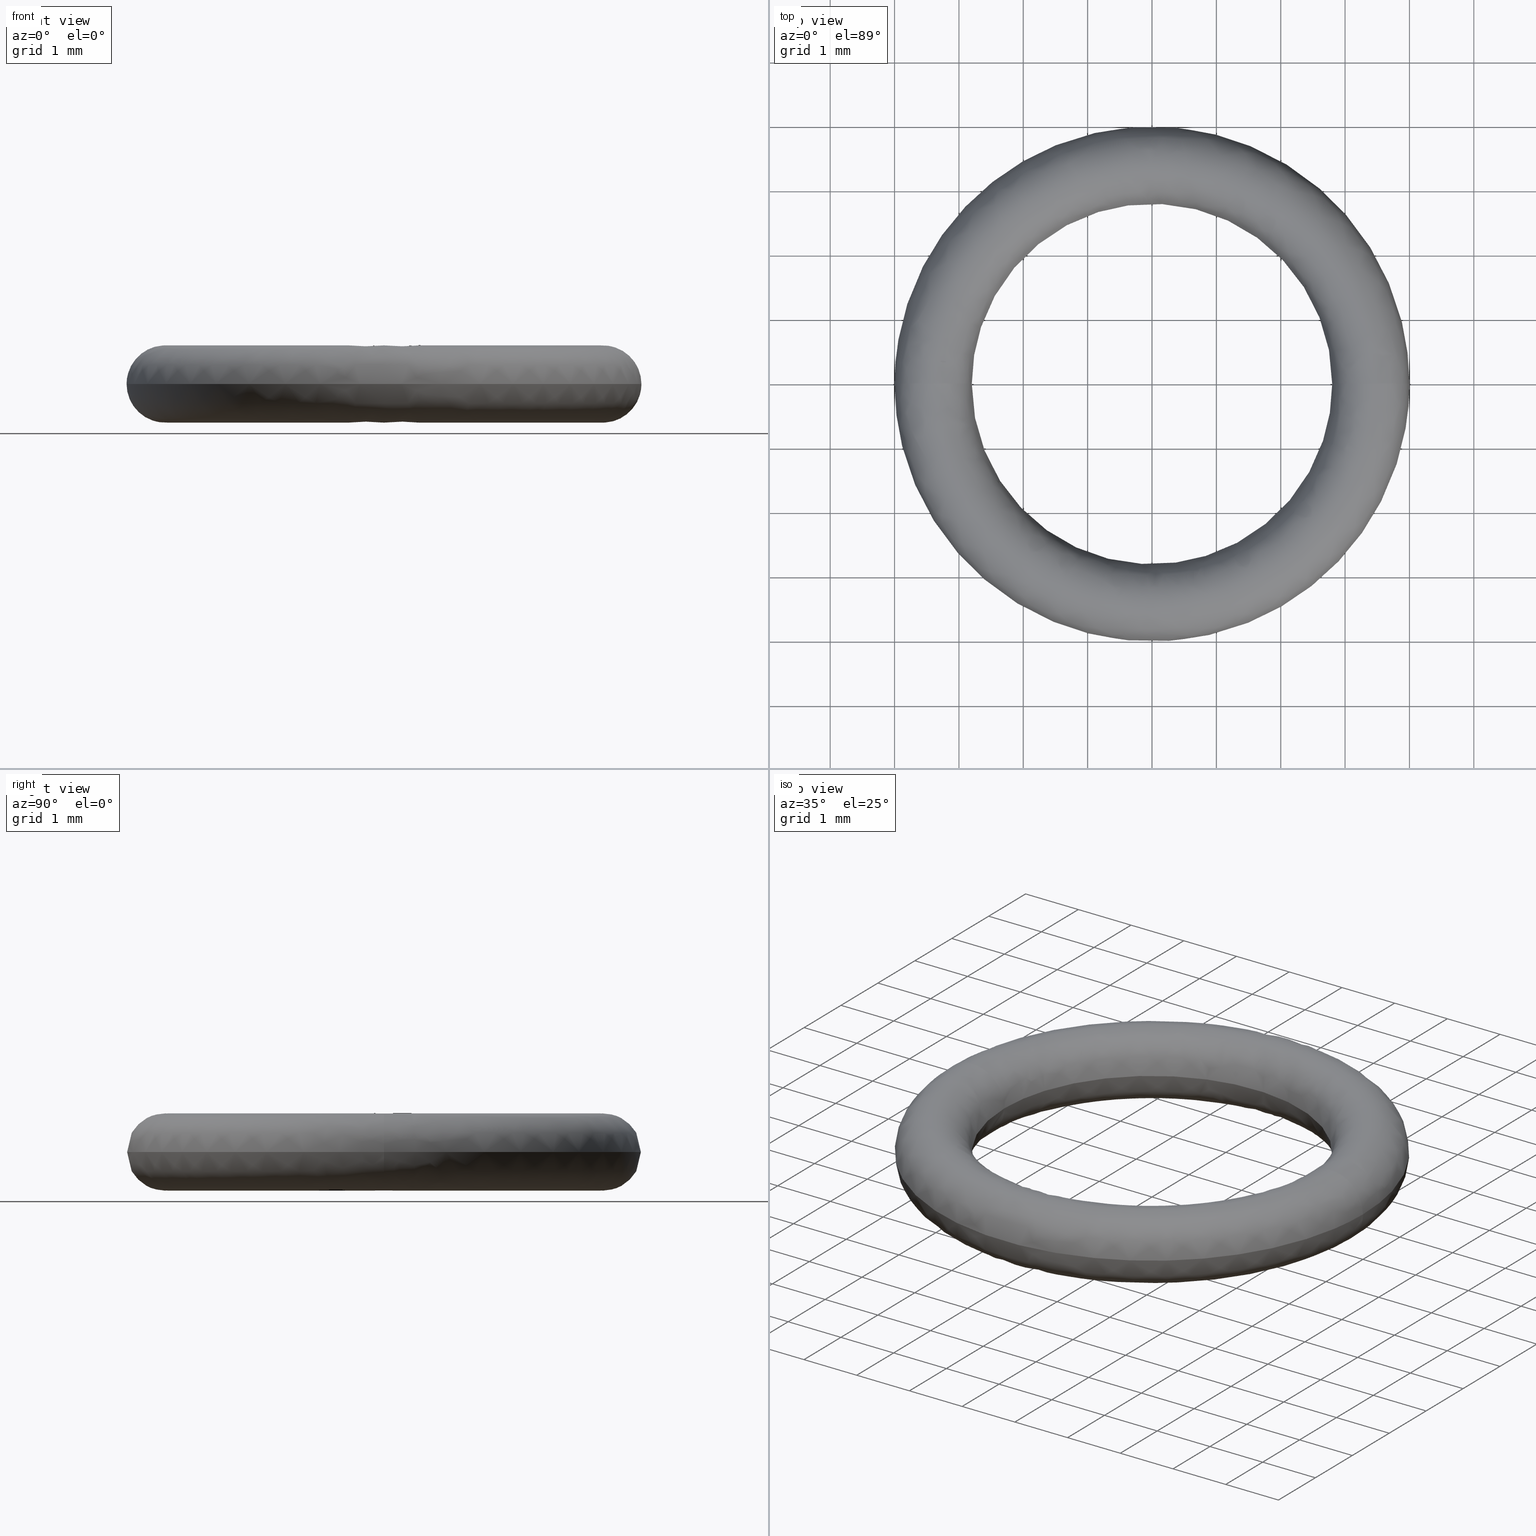
[diagram: canonical four-view strip — front | top / right | iso, engineering-drawing reading convention]
A machine part, canonical four-view strip (front | top / right | iso — engineering-drawing reading convention). The complete STEP part file that produces these views, byte-faithful:
ISO-10303-21;
HEADER;
/****************************************************************
 * Generated by software with PDE/Lib inside                    *
 * PDElib Version v5.1, created Sun 05/01/2005                  *
 * International Technegroup Inc. (www.iti-oh.com)              *
 ****************************************************************/
FILE_DESCRIPTION((''),'2;1');
FILE_NAME('','2008-05-09T15:37:03',(''),(''),'','CADfix','');
FILE_SCHEMA(('AUTOMOTIVE_DESIGN { 1 0 10303 214 1 1 1 1 }'));
ENDSEC;
DATA;
#5=CARTESIAN_POINT('',(-2.777875372500668,-0.396817956375201,16.314835930671720));
#6=CARTESIAN_POINT('',(-3.235406833895217,2.806074852110597,16.314835930671716));
#7=CARTESIAN_POINT('',(0.0,2.806074852110597,16.314835930671716));
#8=CARTESIAN_POINT('',(3.235406871185183,2.806074852110597,16.314835930671713));
#9=CARTESIAN_POINT('',(2.777875367973068,-0.396817988070098,16.314835930671720));
#10=CARTESIAN_POINT('',(-2.681230829685066,-0.383012337032250,16.995666644880025));
#11=CARTESIAN_POINT('',(-3.122844399532731,2.708449226471225,16.995666644880025));
#12=CARTESIAN_POINT('',(0.0,2.708449226471226,16.995666644880025));
#13=CARTESIAN_POINT('',(3.122844435525348,2.708449226471225,16.995666644880025));
#14=CARTESIAN_POINT('',(2.681230825314987,-0.383012367624456,16.995666644880028));
#15=CARTESIAN_POINT('',(-3.362099904382788,-0.480274106748508,16.999988156513684));
#16=CARTESIAN_POINT('',(-3.915856382385606,3.396230113620663,16.999988156513687));
#17=CARTESIAN_POINT('',(0.0,3.396230113620664,16.999988156513680));
#18=CARTESIAN_POINT('',(3.915856427518151,3.396230113620663,16.999988156513684));
#19=CARTESIAN_POINT('',(3.362099898902975,-0.480274145109267,16.999988156513684));
#20=CARTESIAN_POINT('',(-4.051174050545057,-0.578707966373012,17.004361746165149));
#21=CARTESIAN_POINT('',(-4.718424857423761,4.092299365656576,17.004361746165138));
#22=CARTESIAN_POINT('',(0.0,4.092299365656578,17.004361746165152));
#23=CARTESIAN_POINT('',(4.718424911806380,4.092299365656578,17.004361746165142));
#24=CARTESIAN_POINT('',(4.051174043942133,-0.578708012595943,17.004361746165149));
#25=CARTESIAN_POINT('',(-3.953848004724359,-0.564804994703739,16.315256616232155));
#26=CARTESIAN_POINT('',(-4.605068672736176,3.993985318764339,16.315256616232165));
#27=CARTESIAN_POINT('',(0.0,3.993985318764341,16.315256616232162));
#28=CARTESIAN_POINT('',(4.605068725812303,3.993985318764341,16.315256616232162));
#29=CARTESIAN_POINT('',(3.953847998280069,-0.564805039816204,16.315256616232165));
#37=(BOUNDED_SURFACE()B_SPLINE_SURFACE(2,2,((#5,#10,#15,#20,#25),(#6,#11,#16,#21,#26),(#7,#12,#17,#22,#27),(#8,#13,#18,#23,#28),(#9,#14,#19,#24,#29)),.UNSPECIFIED.,.F.,.F.,.U.)B_SPLINE_SURFACE_WITH_KNOTS((3,2,3),(3,2,3),(0.0,7.291548608835258,14.583097272542959),(0.0,1.091252790812270,2.191062567604252),.UNSPECIFIED.)GEOMETRIC_REPRESENTATION_ITEM()RATIONAL_B_SPLINE_SURFACE(((0.981153888787269,0.648897167007275,0.993091000097863,0.646198194020578,0.986406220279565),(0.645088854033311,0.426636773939286,0.652937263486529,0.424862253743267,0.648542155846706),(0.987979841414918,0.653411587602073,1.0,0.650693837681440,0.993268713725490),(0.645088851452890,0.426636772232695,0.652937260874713,0.424862252043775,0.648542153252471),(0.981153893845374,0.648897170352509,0.993091005217507,0.646198197351899,0.986406225364747)))REPRESENTATION_ITEM('')SURFACE());
#38=CARTESIAN_POINT('',(4.0,0.0,16.399999999999999));
#39=VERTEX_POINT('',#38);
#40=CARTESIAN_POINT('',(-4.0,0.0,16.399999999999999));
#41=VERTEX_POINT('',#40);
#42=CARTESIAN_POINT('',(4.0,0.0,16.399999999999999));
#43=CARTESIAN_POINT('',(3.999961440489741,0.008181102791766,16.399999999999999));
#44=CARTESIAN_POINT('',(3.999967574564873,0.020450532218382,16.399999999999991));
#45=CARTESIAN_POINT('',(3.999739604024851,0.049081402965024,16.400000000000020));
#46=CARTESIAN_POINT('',(3.999374413978037,0.073620407451854,16.399999999999970));
#47=CARTESIAN_POINT('',(3.998777420192495,0.098156892664124,16.400000000000020));
#48=CARTESIAN_POINT('',(3.998383783816923,0.114514654640236,16.400000000000009));
#49=CARTESIAN_POINT('',(3.994110332273887,0.253532167455842,16.399999999999970));
#50=CARTESIAN_POINT('',(3.973154795636167,0.510680531255496,16.400000000000070));
#51=CARTESIAN_POINT('',(3.894083925516181,0.958293082501101,16.399999999999920));
#52=CARTESIAN_POINT('',(3.759352811009150,1.397593003374869,16.400000000000190));
#53=CARTESIAN_POINT('',(3.570884939821942,1.815791225785016,16.399999999999750));
#54=CARTESIAN_POINT('',(3.372014347450854,2.164353582960367,16.400000000000301));
#55=CARTESIAN_POINT('',(3.095997418079214,2.551219960457702,16.399999999999871));
#56=CARTESIAN_POINT('',(2.776631557714267,2.892907800792470,16.400000000000059));
#57=CARTESIAN_POINT('',(2.444533567672558,3.172324968443587,16.399999999999981));
#58=CARTESIAN_POINT('',(2.149953186303385,3.379793569105311,16.400000000000020));
#59=CARTESIAN_POINT('',(1.780648328435654,3.592014683009853,16.400000000000009));
#60=CARTESIAN_POINT('',(1.373669597998486,3.766468058451909,16.400000000000009));
#61=CARTESIAN_POINT('',(0.871087526299696,3.915570685735706,16.400000000000009));
#62=CARTESIAN_POINT('',(0.368702580764256,3.996407127036347,16.399999999999999));
#63=CARTESIAN_POINT('',(-0.139402530317862,4.005748185336730,16.400000000000009));
#64=CARTESIAN_POINT('',(-0.547220152750281,3.968105416517205,16.400000000000020));
#65=CARTESIAN_POINT('',(-0.925591056888228,3.897658889155479,16.399999999999970));
#66=CARTESIAN_POINT('',(-1.303600577278545,3.789297323208371,16.400000000000091));
#67=CARTESIAN_POINT('',(-1.645478292933573,3.651356998284719,16.399999999999959));
#68=CARTESIAN_POINT('',(-1.981302890566524,3.481023356246583,16.399999999999579));
#69=CARTESIAN_POINT('',(-2.342669214742069,3.255295677619120,16.400000000001299));
#70=CARTESIAN_POINT('',(-2.743090871598162,2.928730099104168,16.399999999999611));
#71=CARTESIAN_POINT('',(-3.139336709116809,2.502186195997212,16.400000000000190));
#72=CARTESIAN_POINT('',(-3.441136026738777,2.062287892690360,16.399999999999991));
#73=CARTESIAN_POINT('',(-3.689426017246314,1.572762870391445,16.399999999999871));
#74=CARTESIAN_POINT('',(-3.852479648786980,1.117053041660057,16.400000000000428));
#75=CARTESIAN_POINT('',(-3.971213632769302,0.572678780686917,16.399999999998901));
#76=CARTESIAN_POINT('',(-4.000015899636702,0.212711229629193,16.400000000001960));
#77=CARTESIAN_POINT('',(-4.0,0.0,16.399999999999999));
#78=B_SPLINE_CURVE_WITH_KNOTS('',3,(#42,#43,#44,#45,#46,#47,#48,#49,#50,#51,#52,#53,#54,#55,#56,#57,#58,#59,#60,#61,#62,#63,#64,#65,#66,#67,#68,#69,#70,#71,#72,#73,#74,#75,#76,#77),.UNSPECIFIED.,.F.,.U.,(4,1,1,1,1,1,1,1,1,1,1,1,1,1,1,1,1,1,1,1,1,1,1,1,1,1,1,1,1,1,1,1,1,4),(-0.000000209137596,0.024543491509574,0.036807681926286,0.085895327478180,0.098167208588050,0.110439089697936,0.134982919323070,0.515415245818492,0.883568931240912,1.497166940416763,1.889864152655729,2.258022912732876,2.699809435516153,3.313404284423827,3.657016211777661,4.000630372694650,4.393330845419417,4.933294055388171,5.325992935525208,5.964132481822455,6.454995797628889,6.847696719384165,7.191309076864951,7.608552269379263,8.025798469231166,8.295778967478007,8.737567311746116,9.302073808955822,9.842037269092650,10.480175369783471,10.897420264296221,11.486469650953531,11.928258623753980,12.566390195790500),.UNSPECIFIED.);
#79=EDGE_CURVE('',#39,#41,#78,.T.);
#80=ORIENTED_EDGE('',*,*,#79,.T.);
#81=CARTESIAN_POINT('',(-2.800000000000000,0.0,16.399999999999999));
#82=VERTEX_POINT('',#81);
#83=CARTESIAN_POINT('',(-2.800000000000000,0.0,16.399999999999999));
#84=CARTESIAN_POINT('',(-2.799994353726029,0.0,16.441723926962460));
#85=CARTESIAN_POINT('',(-2.808737144108266,0.0,16.525170939752609));
#86=CARTESIAN_POINT('',(-2.843682864093510,0.0,16.633173753535239));
#87=CARTESIAN_POINT('',(-2.893571713351621,0.0,16.726502531755418));
#88=CARTESIAN_POINT('',(-2.947271016792977,0.0,16.797079483757251));
#89=CARTESIAN_POINT('',(-3.014150843748988,0.0,16.862338376996099));
#90=CARTESIAN_POINT('',(-3.092013886586734,0.0,16.918620808358138));
#91=CARTESIAN_POINT('',(-3.183103088158511,0.0,16.962386197675539));
#92=CARTESIAN_POINT('',(-3.284740577166984,0.0,16.991861379269441));
#93=CARTESIAN_POINT('',(-3.385238126015104,0.0,17.003006296942150));
#94=CARTESIAN_POINT('',(-3.481043080016893,0.0,16.996525422313500));
#95=CARTESIAN_POINT('',(-3.577271079371918,0.0,16.976158591405412));
#96=CARTESIAN_POINT('',(-3.666849490362431,0.0,16.940972442704151));
#97=CARTESIAN_POINT('',(-3.748560128106654,0.0,16.890616233581358));
#98=CARTESIAN_POINT('',(-3.816990961112133,0.0,16.834458255815338));
#99=CARTESIAN_POINT('',(-3.883168853671293,0.0,16.761449719874641));
#100=CARTESIAN_POINT('',(-3.933622882016130,0.0,16.679562813054289));
#101=CARTESIAN_POINT('',(-3.969896826736434,0.0,16.593483016764178));
#102=CARTESIAN_POINT('',(-3.993654314216274,0.0,16.505534769370961));
#103=CARTESIAN_POINT('',(-4.000004211094138,0.0,16.436814191478351));
#104=CARTESIAN_POINT('',(-4.0,0.0,16.399999999999999));
#105=B_SPLINE_CURVE_WITH_KNOTS('',3,(#83,#84,#85,#86,#87,#88,#89,#90,#91,#92,#93,#94,#95,#96,#97,#98,#99,#100,#101,#102,#103,#104),.UNSPECIFIED.,.F.,.U.,(4,1,1,1,1,1,1,1,1,1,1,1,1,1,1,1,1,1,1,4),(0.000000018782312,0.125171717481873,0.250347001741718,0.338705202091769,0.441788962435015,0.515421062808772,0.618507664575425,0.728954044913051,0.817314844633319,0.935123349713143,1.030841062840501,1.104472979424578,1.229646399557252,1.318004350430563,1.391635806681963,1.494720717067872,1.612531298924086,1.678799555810332,1.774525153378292,1.884967419458762),.UNSPECIFIED.);
#106=EDGE_CURVE('',#82,#41,#105,.T.);
#107=ORIENTED_EDGE('',*,*,#106,.F.);
#108=CARTESIAN_POINT('',(2.800000000000000,0.0,16.399999999999999));
#109=VERTEX_POINT('',#108);
#110=CARTESIAN_POINT('',(2.800000000000000,0.0,16.399999999999999));
#111=CARTESIAN_POINT('',(2.800004812009069,0.125989308582607,16.400000000000041));
#112=CARTESIAN_POINT('',(2.782579121566970,0.383696299128810,16.399999999999931));
#113=CARTESIAN_POINT('',(2.705241802195382,0.754633241336199,16.400000000000080));
#114=CARTESIAN_POINT('',(2.576820895603008,1.117052501365740,16.399999999999899));
#115=CARTESIAN_POINT('',(2.416488145136829,1.428404963207836,16.400000000000020));
#116=CARTESIAN_POINT('',(2.245305949130950,1.679552040897550,16.400000000000009));
#117=CARTESIAN_POINT('',(2.048234778051256,1.918197845318276,16.399999999999832));
#118=CARTESIAN_POINT('',(1.808430740334151,2.149331834045954,16.400000000000311));
#119=CARTESIAN_POINT('',(1.483582043366364,2.385653506310190,16.399999999999832));
#120=CARTESIAN_POINT('',(1.153786354958993,2.560635553671300,16.400000000000290));
#121=CARTESIAN_POINT('',(0.825404503079591,2.681544423207676,16.399999999999949));
#122=CARTESIAN_POINT('',(0.496947567025119,2.762751778803920,16.400000000000059));
#123=CARTESIAN_POINT('',(0.166344823841260,2.802498892100321,16.399999999999849));
#124=CARTESIAN_POINT('',(-0.189253707292652,2.800313946405548,16.399999999999810));
#125=CARTESIAN_POINT('',(-0.485307763489216,2.762877886378525,16.400000000000109));
#126=CARTESIAN_POINT('',(-0.792228330165327,2.690981760751203,16.399999999999959));
#127=CARTESIAN_POINT('',(-1.068693632494266,2.594924385079142,16.400000000000031));
#128=CARTESIAN_POINT('',(-1.347403063821782,2.459948629402672,16.399999999999999));
#129=CARTESIAN_POINT('',(-1.601240313112609,2.303539145714728,16.399999999999999));
#130=CARTESIAN_POINT('',(-1.859636409334965,2.103161144502490,16.399999999999999));
#131=CARTESIAN_POINT('',(-2.139696958486721,1.823113000589331,16.400000000000009));
#132=CARTESIAN_POINT('',(-2.380793398265504,1.493832865075246,16.399999999999999));
#133=CARTESIAN_POINT('',(-2.561561659436937,1.147988773044523,16.399999999999999));
#134=CARTESIAN_POINT('',(-2.696590786933832,0.788134522616054,16.400000000000372));
#135=CARTESIAN_POINT('',(-2.781038356102332,0.406606267933009,16.399999999998780));
#136=CARTESIAN_POINT('',(-2.800002292685097,0.125989228224001,16.400000000001079));
#137=CARTESIAN_POINT('',(-2.800000000000000,0.0,16.399999999999999));
#138=B_SPLINE_CURVE_WITH_KNOTS('',3,(#110,#111,#112,#113,#114,#115,#116,#117,#118,#119,#120,#121,#122,#123,#124,#125,#126,#127,#128,#129,#130,#131,#132,#133,#134,#135,#136,#137),.UNSPECIFIED.,.F.,.U.,(4,1,1,1,1,1,1,1,1,1,1,1,1,1,1,1,1,1,1,1,1,1,1,1,1,4),(4.500448E-009,0.377968096740929,0.773124412660360,1.133917160117234,1.529074027341316,1.821143805324539,2.044492759038594,2.456828710794857,2.817622875045096,3.247136556739816,3.573568763294388,3.865641197372780,4.260797836688766,4.570040062784586,4.930830581168669,5.154179668613714,5.514974132374521,5.807046629103290,6.081936028197761,6.408367821239052,6.786341860093609,7.267400934269064,7.628192636042226,7.954625146812234,8.418504063668173,8.796473229144109),.UNSPECIFIED.);
#139=EDGE_CURVE('',#109,#82,#138,.T.);
#140=ORIENTED_EDGE('',*,*,#139,.F.);
#141=CARTESIAN_POINT('',(4.0,0.0,16.399999999999999));
#142=CARTESIAN_POINT('',(4.000004803163661,0.0,16.441723644866549));
#143=CARTESIAN_POINT('',(3.990239329814242,0.0,16.534989613560359));
#144=CARTESIAN_POINT('',(3.944363270327732,0.0,16.665764326697708));
#145=CARTESIAN_POINT('',(3.875670365232792,0.0,16.771322325707530));
#146=CARTESIAN_POINT('',(3.804393216740163,0.0,16.846180655190679));
#147=CARTESIAN_POINT('',(3.728728786807723,0.0,16.905233317770509));
#148=CARTESIAN_POINT('',(3.650732231305449,0.0,16.947539584632491));
#149=CARTESIAN_POINT('',(3.565286025793939,0.0,16.978703587531388));
#150=CARTESIAN_POINT('',(3.473874241926062,0.0,16.998646154968860));
#151=CARTESIAN_POINT('',(3.380224176946903,0.0,17.002094985454029));
#152=CARTESIAN_POINT('',(3.287451844465935,0.0,16.991227165096070));
#153=CARTESIAN_POINT('',(3.201602170567794,0.0,16.969165930402600));
#154=CARTESIAN_POINT('',(3.104759116840002,0.0,16.926240153863372));
#155=CARTESIAN_POINT('',(3.023414126248645,0.0,16.870432075372200));
#156=CARTESIAN_POINT('',(2.955740701422391,0.0,16.805995601417830));
#157=CARTESIAN_POINT('',(2.903455714101586,0.0,16.740667610010050));
#158=CARTESIAN_POINT('',(2.850159165676228,0.0,16.649241282857421));
#159=CARTESIAN_POINT('',(2.810071487184983,0.0,16.534988222503010));
#160=CARTESIAN_POINT('',(2.799993376067489,0.0,16.444178435975740));
#161=CARTESIAN_POINT('',(2.800000000000000,0.0,16.399999999999999));
#162=B_SPLINE_CURVE_WITH_KNOTS('',3,(#141,#142,#143,#144,#145,#146,#147,#148,#149,#150,#151,#152,#153,#154,#155,#156,#157,#158,#159,#160,#161),.UNSPECIFIED.,.F.,.U.,(4,1,1,1,1,1,1,1,1,1,1,1,1,1,1,1,1,1,4),(0.000000018786240,0.125171717485643,0.279799921469428,0.412335833871252,0.500695230315393,0.589054589586465,0.699500247505869,0.765769115745533,0.861494480443776,0.979295057282230,1.045562757972785,1.141287110436962,1.244370130277400,1.362182668020234,1.435815178796237,1.524173478825338,1.612531298924706,1.752432195032293,1.884967419458812),.UNSPECIFIED.);
#163=EDGE_CURVE('',#39,#109,#162,.T.);
#164=ORIENTED_EDGE('',*,*,#163,.F.);
#165=EDGE_LOOP('',(#80,#107,#140,#164));
#166=FACE_OUTER_BOUND('',#165,.T.);
#167=ADVANCED_FACE('',(#166),#37,.T.);
#168=CARTESIAN_POINT('',(-3.953788438532989,-0.564796485706337,16.485164069328288));
#169=CARTESIAN_POINT('',(-4.604999295663133,3.993925147889400,16.485164069328295));
#170=CARTESIAN_POINT('',(0.0,3.993925147889400,16.485164069328277));
#171=CARTESIAN_POINT('',(4.604999348738456,3.993925147889401,16.485164069328288));
#172=CARTESIAN_POINT('',(3.953788432088797,-0.564796530818122,16.485164069328281));
#173=CARTESIAN_POINT('',(-4.050432981348592,-0.578602105049288,15.804333355119979));
#174=CARTESIAN_POINT('',(-4.717561730025619,4.091550773528772,15.804333355119979));
#175=CARTESIAN_POINT('',(0.0,4.091550773528773,15.804333355119985));
#176=CARTESIAN_POINT('',(4.717561784398291,4.091550773528772,15.804333355119979));
#177=CARTESIAN_POINT('',(4.050432974746877,-0.578602151263764,15.804333355119983));
#178=CARTESIAN_POINT('',(-3.369563906650869,-0.481340335333030,15.800011843486320));
#179=CARTESIAN_POINT('',(-3.924549747172747,3.403769886379333,15.800011843486313));
#180=CARTESIAN_POINT('',(0.0,3.403769886379334,15.800011843486320));
#181=CARTESIAN_POINT('',(3.924549792405488,3.403769886379334,15.800011843486324));
#182=CARTESIAN_POINT('',(3.369563901158891,-0.481340373778952,15.800011843486324));
#183=CARTESIAN_POINT('',(-2.680489760488602,-0.382906475708526,15.795638253834872));
#184=CARTESIAN_POINT('',(-3.121981272134589,2.707700634343421,15.795638253834863));
#185=CARTESIAN_POINT('',(0.0,2.707700634343421,15.795638253834861));
#186=CARTESIAN_POINT('',(3.121981308117259,2.707700634343421,15.795638253834865));
#187=CARTESIAN_POINT('',(2.680489756119730,-0.382906506292276,15.795638253834866));
#188=CARTESIAN_POINT('',(-2.777815806309296,-0.396809447377799,16.484743383767832));
#189=CARTESIAN_POINT('',(-3.235337456822173,2.806014681235657,16.484743383767849));
#190=CARTESIAN_POINT('',(0.0,2.806014681235657,16.484743383767846));
#191=CARTESIAN_POINT('',(3.235337494111338,2.806014681235657,16.484743383767842));
#192=CARTESIAN_POINT('',(2.777815801781796,-0.396809479072016,16.484743383767842));
#200=(BOUNDED_SURFACE()B_SPLINE_SURFACE(2,2,((#168,#173,#178,#183,#188),(#169,#174,#179,#184,#189),(#170,#175,#180,#185,#190),(#171,#176,#181,#186,#191),(#172,#177,#182,#187,#192)),.UNSPECIFIED.,.F.,.F.,.U.)B_SPLINE_SURFACE_WITH_KNOTS((3,2,3),(3,2,3),(0.0,7.291438758942369,14.582877572756360),(0.0,1.091252790812271,2.191062567604255),.UNSPECIFIED.)GEOMETRIC_REPRESENTATION_ITEM()RATIONAL_B_SPLINE_SURFACE(((0.981153888787269,0.648897167007275,0.993091000097863,0.646198194020578,0.986406220279565),(0.645088854033311,0.426636773939286,0.652937263486529,0.424862253743267,0.648542155846706),(0.987979841414918,0.653411587602073,1.0,0.650693837681440,0.993268713725490),(0.645088851452890,0.426636772232695,0.652937260874713,0.424862252043775,0.648542153252471),(0.981153893845374,0.648897170352509,0.993091005217507,0.646198197351899,0.986406225364747)))REPRESENTATION_ITEM('')SURFACE());
#201=ORIENTED_EDGE('',*,*,#139,.T.);
#202=CARTESIAN_POINT('',(-4.0,0.0,16.399999999999999));
#203=CARTESIAN_POINT('',(-4.000002249409790,0.0,16.363186614711640));
#204=CARTESIAN_POINT('',(-3.992302979636138,0.0,16.279736989762259));
#205=CARTESIAN_POINT('',(-3.955715417059697,0.0,16.161725387586330));
#206=CARTESIAN_POINT('',(-3.896143020738874,0.0,16.056580730816808));
#207=CARTESIAN_POINT('',(-3.816844495838745,0.0,15.962326755071320));
#208=CARTESIAN_POINT('',(-3.721321260831053,0.0,15.887777025697259));
#209=CARTESIAN_POINT('',(-3.616896279848947,0.0,15.837614282601990));
#210=CARTESIAN_POINT('',(-3.529441510034644,0.0,15.812255073491640));
#211=CARTESIAN_POINT('',(-3.446742728575046,0.0,15.799989068207561));
#212=CARTESIAN_POINT('',(-3.350771415261744,0.0,15.798805904870930));
#213=CARTESIAN_POINT('',(-3.229068931364115,0.0,15.819141406775950));
#214=CARTESIAN_POINT('',(-3.110481246967989,0.0,15.869120447026869));
#215=CARTESIAN_POINT('',(-3.015824800835956,0.0,15.935799834070410));
#216=CARTESIAN_POINT('',(-2.945367616918193,0.0,16.004548974694352));
#217=CARTESIAN_POINT('',(-2.882260892184698,0.0,16.089628023437260));
#218=CARTESIAN_POINT('',(-2.835235628034671,0.0,16.187499185047962));
#219=CARTESIAN_POINT('',(-2.806346212667720,0.0,16.294465411695811));
#220=CARTESIAN_POINT('',(-2.799995779917154,0.0,16.363185821076080));
#221=CARTESIAN_POINT('',(-2.800000000000000,0.0,16.399999999999999));
#222=B_SPLINE_CURVE_WITH_KNOTS('',3,(#202,#203,#204,#205,#206,#207,#208,#209,#210,#211,#212,#213,#214,#215,#216,#217,#218,#219,#220,#221),.UNSPECIFIED.,.F.,.U.,(4,1,1,1,1,1,1,1,1,1,1,1,1,1,1,1,1,4),(0.000000018780131,0.110441465082837,0.250347001739653,0.368157757168497,0.471242095958040,0.618507664574304,0.728954044912137,0.817314844632539,0.890942495057172,0.979295057280498,1.104472979424393,1.259099157792597,1.362182668019704,1.450542089480547,1.553626133913531,1.678799555810924,1.774525153378640,1.884967419458822),.UNSPECIFIED.);
#223=EDGE_CURVE('',#41,#82,#222,.T.);
#224=ORIENTED_EDGE('',*,*,#223,.F.);
#225=ORIENTED_EDGE('',*,*,#79,.F.);
#226=CARTESIAN_POINT('',(2.800000000000000,0.0,16.399999999999999));
#227=CARTESIAN_POINT('',(2.799992309614939,0.0,16.353368629078108));
#228=CARTESIAN_POINT('',(2.811495666202324,0.0,16.255195494228289));
#229=CARTESIAN_POINT('',(2.855313927737275,0.0,16.139476737843140));
#230=CARTESIAN_POINT('',(2.915955300363661,0.0,16.041085802324002));
#231=CARTESIAN_POINT('',(2.986827392033808,0.0,15.958911383233451));
#232=CARTESIAN_POINT('',(3.083125392997633,0.0,15.885645301462869));
#233=CARTESIAN_POINT('',(3.183103430334856,0.0,15.837614405878011));
#234=CARTESIAN_POINT('',(3.280014249449847,0.0,15.809511440221369));
#235=CARTESIAN_POINT('',(3.377809182116460,0.0,15.797448197503380));
#236=CARTESIAN_POINT('',(3.473765350254842,0.0,15.802165426145169));
#237=CARTESIAN_POINT('',(3.574973163509643,0.0,15.822938899742150));
#238=CARTESIAN_POINT('',(3.666849238753304,0.0,15.859027871747189));
#239=CARTESIAN_POINT('',(3.752751109825342,0.0,15.911965303479271));
#240=CARTESIAN_POINT('',(3.828076315978014,0.0,15.975343493187710));
#241=CARTESIAN_POINT('',(3.905891253905931,0.0,16.067803342769331));
#242=CARTESIAN_POINT('',(3.962204334531045,0.0,16.177987077688229));
#243=CARTESIAN_POINT('',(3.993652453106882,0.0,16.294466183736489));
#244=CARTESIAN_POINT('',(4.000004119203632,0.0,16.363185840098819));
#245=CARTESIAN_POINT('',(4.0,0.0,16.399999999999999));
#246=B_SPLINE_CURVE_WITH_KNOTS('',3,(#226,#227,#228,#229,#230,#231,#232,#233,#234,#235,#236,#237,#238,#239,#240,#241,#242,#243,#244,#245),.UNSPECIFIED.,.F.,.U.,(4,1,1,1,1,1,1,1,1,1,1,1,1,1,1,1,1,4),(0.000000018786855,0.139894757163807,0.294523319293112,0.368157757173257,0.485968427485647,0.618507664578307,0.728954044915797,0.817314844635872,0.920400074145881,1.023474659098492,1.104472979426352,1.229646399558693,1.318004350431840,1.406362498345935,1.524173478825866,1.678799555811153,1.774525153378642,1.884967419458770),.UNSPECIFIED.);
#247=EDGE_CURVE('',#109,#39,#246,.T.);
#248=ORIENTED_EDGE('',*,*,#247,.F.);
#249=EDGE_LOOP('',(#201,#224,#225,#248));
#250=FACE_OUTER_BOUND('',#249,.T.);
#251=ADVANCED_FACE('',(#250),#200,.T.);
#252=CARTESIAN_POINT('',(2.777875372500668,0.396817956375202,16.314835930671720));
#253=CARTESIAN_POINT('',(3.235406833895217,-2.806074852110597,16.314835930671716));
#254=CARTESIAN_POINT('',(3.436337E-016,-2.806074852110597,16.314835930671716));
#255=CARTESIAN_POINT('',(-3.235406871185182,-2.806074852110597,16.314835930671713));
#256=CARTESIAN_POINT('',(-2.777875367973068,0.396817988070097,16.314835930671720));
#257=CARTESIAN_POINT('',(2.681230829685066,0.383012337032251,16.995666644880025));
#258=CARTESIAN_POINT('',(3.122844399532731,-2.708449226471225,16.995666644880025));
#259=CARTESIAN_POINT('',(3.316784E-016,-2.708449226471226,16.995666644880025));
#260=CARTESIAN_POINT('',(-3.122844435525348,-2.708449226471225,16.995666644880025));
#261=CARTESIAN_POINT('',(-2.681230825314987,0.383012367624455,16.995666644880028));
#262=CARTESIAN_POINT('',(3.362099904382788,0.480274106748508,16.999988156513684));
#263=CARTESIAN_POINT('',(3.915856382385606,-3.396230113620663,16.999988156513687));
#264=CARTESIAN_POINT('',(4.159045E-016,-3.396230113620664,16.999988156513680));
#265=CARTESIAN_POINT('',(-3.915856427518151,-3.396230113620665,16.999988156513684));
#266=CARTESIAN_POINT('',(-3.362099898902975,0.480274145109267,16.999988156513684));
#267=CARTESIAN_POINT('',(4.051174050545057,0.578707966373013,17.004361746165149));
#268=CARTESIAN_POINT('',(4.718424857423761,-4.092299365656576,17.004361746165138));
#269=CARTESIAN_POINT('',(5.011456E-016,-4.092299365656578,17.004361746165152));
#270=CARTESIAN_POINT('',(-4.718424911806380,-4.092299365656578,17.004361746165142));
#271=CARTESIAN_POINT('',(-4.051174043942133,0.578708012595943,17.004361746165149));
#272=CARTESIAN_POINT('',(3.953848004724359,0.564804994703739,16.315256616232155));
#273=CARTESIAN_POINT('',(4.605068672736176,-3.993985318764339,16.315256616232165));
#274=CARTESIAN_POINT('',(4.891060E-016,-3.993985318764341,16.315256616232162));
#275=CARTESIAN_POINT('',(-4.605068725812299,-3.993985318764341,16.315256616232162));
#276=CARTESIAN_POINT('',(-3.953847998280069,0.564805039816203,16.315256616232165));
#284=(BOUNDED_SURFACE()B_SPLINE_SURFACE(2,2,((#252,#257,#262,#267,#272),(#253,#258,#263,#268,#273),(#254,#259,#264,#269,#274),(#255,#260,#265,#270,#275),(#256,#261,#266,#271,#276)),.UNSPECIFIED.,.F.,.F.,.U.)B_SPLINE_SURFACE_WITH_KNOTS((3,2,3),(3,2,3),(0.0,7.291548608835258,14.583097272542959),(0.0,1.091252790812270,2.191062567604251),.UNSPECIFIED.)GEOMETRIC_REPRESENTATION_ITEM()RATIONAL_B_SPLINE_SURFACE(((0.981153888787269,0.648897167007275,0.993091000097863,0.646198194020578,0.986406220279565),(0.645088854033311,0.426636773939286,0.652937263486529,0.424862253743267,0.648542155846706),(0.987979841414918,0.653411587602073,1.0,0.650693837681440,0.993268713725490),(0.645088851452890,0.426636772232695,0.652937260874713,0.424862252043775,0.648542153252471),(0.981153893845374,0.648897170352509,0.993091005217507,0.646198197351899,0.986406225364747)))REPRESENTATION_ITEM('')SURFACE());
#285=ORIENTED_EDGE('',*,*,#163,.T.);
#286=CARTESIAN_POINT('',(-2.800000000000000,0.0,16.399999999999999));
#287=CARTESIAN_POINT('',(-2.800004812009069,-0.125989308582607,16.400000000000041));
#288=CARTESIAN_POINT('',(-2.782579121566970,-0.383696299128810,16.399999999999931));
#289=CARTESIAN_POINT('',(-2.705241802195382,-0.754633241336199,16.400000000000080));
#290=CARTESIAN_POINT('',(-2.576820895603008,-1.117052501365740,16.399999999999899));
#291=CARTESIAN_POINT('',(-2.416488145136829,-1.428404963207836,16.400000000000020));
#292=CARTESIAN_POINT('',(-2.245305949130950,-1.679552040897550,16.400000000000009));
#293=CARTESIAN_POINT('',(-2.048234778051256,-1.918197845318276,16.399999999999832));
#294=CARTESIAN_POINT('',(-1.808430740334151,-2.149331834045954,16.400000000000311));
#295=CARTESIAN_POINT('',(-1.483582043366364,-2.385653506310190,16.399999999999832));
#296=CARTESIAN_POINT('',(-1.153786354958993,-2.560635553671300,16.400000000000290));
#297=CARTESIAN_POINT('',(-0.825404503079591,-2.681544423207676,16.399999999999949));
#298=CARTESIAN_POINT('',(-0.496947567025119,-2.762751778803920,16.400000000000059));
#299=CARTESIAN_POINT('',(-0.166344823841260,-2.802498892100321,16.399999999999849));
#300=CARTESIAN_POINT('',(0.189253707292652,-2.800313946405548,16.399999999999810));
#301=CARTESIAN_POINT('',(0.485307763489216,-2.762877886378525,16.400000000000109));
#302=CARTESIAN_POINT('',(0.792228330165327,-2.690981760751203,16.399999999999959));
#303=CARTESIAN_POINT('',(1.068693632494266,-2.594924385079142,16.400000000000031));
#304=CARTESIAN_POINT('',(1.347403063821782,-2.459948629402672,16.399999999999999));
#305=CARTESIAN_POINT('',(1.601240313112609,-2.303539145714728,16.399999999999999));
#306=CARTESIAN_POINT('',(1.859636409334965,-2.103161144502490,16.399999999999999));
#307=CARTESIAN_POINT('',(2.139696958486721,-1.823113000589331,16.400000000000009));
#308=CARTESIAN_POINT('',(2.380793398265504,-1.493832865075246,16.399999999999999));
#309=CARTESIAN_POINT('',(2.561561659436936,-1.147988773044523,16.399999999999999));
#310=CARTESIAN_POINT('',(2.696590786933832,-0.788134522616054,16.400000000000372));
#311=CARTESIAN_POINT('',(2.781038356102332,-0.406606267933009,16.399999999998780));
#312=CARTESIAN_POINT('',(2.800002292685097,-0.125989228224001,16.400000000001079));
#313=CARTESIAN_POINT('',(2.800000000000000,0.0,16.399999999999999));
#314=B_SPLINE_CURVE_WITH_KNOTS('',3,(#286,#287,#288,#289,#290,#291,#292,#293,#294,#295,#296,#297,#298,#299,#300,#301,#302,#303,#304,#305,#306,#307,#308,#309,#310,#311,#312,#313),.UNSPECIFIED.,.F.,.U.,(4,1,1,1,1,1,1,1,1,1,1,1,1,1,1,1,1,1,1,1,1,1,1,1,1,4),(4.500448E-009,0.377968096740929,0.773124412660360,1.133917160117234,1.529074027341316,1.821143805324539,2.044492759038594,2.456828710794857,2.817622875045096,3.247136556739816,3.573568763294388,3.865641197372780,4.260797836688766,4.570040062784586,4.930830581168669,5.154179668613714,5.514974132374521,5.807046629103290,6.081936028197761,6.408367821239052,6.786341860093609,7.267400934269064,7.628192636042226,7.954625146812234,8.418504063668173,8.796473229144109),.UNSPECIFIED.);
#315=EDGE_CURVE('',#82,#109,#314,.T.);
#316=ORIENTED_EDGE('',*,*,#315,.F.);
#317=ORIENTED_EDGE('',*,*,#106,.T.);
#318=CARTESIAN_POINT('',(-4.0,0.0,16.399999999999999));
#319=CARTESIAN_POINT('',(-3.999961440489741,-0.008181102791766,16.399999999999999));
#320=CARTESIAN_POINT('',(-3.999967574564873,-0.020450532218382,16.399999999999991));
#321=CARTESIAN_POINT('',(-3.999739604024851,-0.049081402965024,16.400000000000020));
#322=CARTESIAN_POINT('',(-3.999374413978037,-0.073620407451854,16.399999999999970));
#323=CARTESIAN_POINT('',(-3.998777420192495,-0.098156892664124,16.400000000000020));
#324=CARTESIAN_POINT('',(-3.998383783816923,-0.114514654640236,16.400000000000009));
#325=CARTESIAN_POINT('',(-3.994110332273887,-0.253532167455842,16.399999999999970));
#326=CARTESIAN_POINT('',(-3.973154795636167,-0.510680531255496,16.400000000000070));
#327=CARTESIAN_POINT('',(-3.894083925516181,-0.958293082501101,16.399999999999920));
#328=CARTESIAN_POINT('',(-3.759352811009150,-1.397593003374869,16.400000000000190));
#329=CARTESIAN_POINT('',(-3.570884939821942,-1.815791225785016,16.399999999999750));
#330=CARTESIAN_POINT('',(-3.372014347450854,-2.164353582960367,16.400000000000301));
#331=CARTESIAN_POINT('',(-3.095997418079214,-2.551219960457702,16.399999999999871));
#332=CARTESIAN_POINT('',(-2.776631557714267,-2.892907800792470,16.400000000000059));
#333=CARTESIAN_POINT('',(-2.444533567672558,-3.172324968443587,16.399999999999981));
#334=CARTESIAN_POINT('',(-2.149953186303385,-3.379793569105311,16.400000000000020));
#335=CARTESIAN_POINT('',(-1.780648328435654,-3.592014683009853,16.400000000000009));
#336=CARTESIAN_POINT('',(-1.373669597998486,-3.766468058451909,16.400000000000009));
#337=CARTESIAN_POINT('',(-0.871087526299696,-3.915570685735706,16.400000000000009));
#338=CARTESIAN_POINT('',(-0.368702580764256,-3.996407127036347,16.399999999999999));
#339=CARTESIAN_POINT('',(0.139402530317862,-4.005748185336730,16.400000000000009));
#340=CARTESIAN_POINT('',(0.547220152750281,-3.968105416517205,16.400000000000020));
#341=CARTESIAN_POINT('',(0.925591056888228,-3.897658889155479,16.399999999999970));
#342=CARTESIAN_POINT('',(1.303600577278545,-3.789297323208371,16.400000000000091));
#343=CARTESIAN_POINT('',(1.645478292933573,-3.651356998284719,16.399999999999959));
#344=CARTESIAN_POINT('',(1.981302890566524,-3.481023356246583,16.399999999999579));
#345=CARTESIAN_POINT('',(2.342669214742069,-3.255295677619120,16.400000000001299));
#346=CARTESIAN_POINT('',(2.743090871598162,-2.928730099104168,16.399999999999611));
#347=CARTESIAN_POINT('',(3.139336709116809,-2.502186195997212,16.400000000000190));
#348=CARTESIAN_POINT('',(3.441136026738777,-2.062287892690360,16.399999999999991));
#349=CARTESIAN_POINT('',(3.689426017246314,-1.572762870391445,16.399999999999871));
#350=CARTESIAN_POINT('',(3.852479648786980,-1.117053041660057,16.400000000000428));
#351=CARTESIAN_POINT('',(3.971213632769302,-0.572678780686917,16.399999999998901));
#352=CARTESIAN_POINT('',(4.000015899636702,-0.212711229629193,16.400000000001960));
#353=CARTESIAN_POINT('',(4.0,0.0,16.399999999999999));
#354=B_SPLINE_CURVE_WITH_KNOTS('',3,(#318,#319,#320,#321,#322,#323,#324,#325,#326,#327,#328,#329,#330,#331,#332,#333,#334,#335,#336,#337,#338,#339,#340,#341,#342,#343,#344,#345,#346,#347,#348,#349,#350,#351,#352,#353),.UNSPECIFIED.,.F.,.U.,(4,1,1,1,1,1,1,1,1,1,1,1,1,1,1,1,1,1,1,1,1,1,1,1,1,1,1,1,1,1,1,1,1,4),(-0.000000209137596,0.024543491509574,0.036807681926286,0.085895327478180,0.098167208588050,0.110439089697936,0.134982919323070,0.515415245818492,0.883568931240912,1.497166940416763,1.889864152655729,2.258022912732876,2.699809435516153,3.313404284423827,3.657016211777661,4.000630372694650,4.393330845419417,4.933294055388171,5.325992935525208,5.964132481822455,6.454995797628889,6.847696719384165,7.191309076864951,7.608552269379263,8.025798469231166,8.295778967478007,8.737567311746116,9.302073808955822,9.842037269092650,10.480175369783471,10.897420264296221,11.486469650953531,11.928258623753980,12.566390195790500),.UNSPECIFIED.);
#355=EDGE_CURVE('',#41,#39,#354,.T.);
#356=ORIENTED_EDGE('',*,*,#355,.T.);
#357=EDGE_LOOP('',(#285,#316,#317,#356));
#358=FACE_OUTER_BOUND('',#357,.T.);
#359=ADVANCED_FACE('',(#358),#284,.T.);
#360=CARTESIAN_POINT('',(3.953788438532989,0.564796485706338,16.485164069328288));
#361=CARTESIAN_POINT('',(4.604999295663133,-3.993925147889399,16.485164069328295));
#362=CARTESIAN_POINT('',(4.890986E-016,-3.993925147889400,16.485164069328277));
#363=CARTESIAN_POINT('',(-4.604999348738456,-3.993925147889401,16.485164069328288));
#364=CARTESIAN_POINT('',(-3.953788432088797,0.564796530818121,16.485164069328281));
#365=CARTESIAN_POINT('',(4.050432981348592,0.578602105049288,15.804333355119979));
#366=CARTESIAN_POINT('',(4.717561730025620,-4.091550773528772,15.804333355119979));
#367=CARTESIAN_POINT('',(5.010539E-016,-4.091550773528773,15.804333355119985));
#368=CARTESIAN_POINT('',(-4.717561784398291,-4.091550773528772,15.804333355119979));
#369=CARTESIAN_POINT('',(-4.050432974746877,0.578602151263763,15.804333355119983));
#370=CARTESIAN_POINT('',(3.369563906650869,0.481340335333031,15.800011843486320));
#371=CARTESIAN_POINT('',(3.924549747172748,-3.403769886379333,15.800011843486313));
#372=CARTESIAN_POINT('',(4.168278E-016,-3.403769886379334,15.800011843486320));
#373=CARTESIAN_POINT('',(-3.924549792405488,-3.403769886379335,15.800011843486324));
#374=CARTESIAN_POINT('',(-3.369563901158891,0.481340373778952,15.800011843486324));
#375=CARTESIAN_POINT('',(2.680489760488602,0.382906475708526,15.795638253834872));
#376=CARTESIAN_POINT('',(3.121981272134589,-2.707700634343421,15.795638253834863));
#377=CARTESIAN_POINT('',(3.315867E-016,-2.707700634343421,15.795638253834861));
#378=CARTESIAN_POINT('',(-3.121981308117259,-2.707700634343421,15.795638253834865));
#379=CARTESIAN_POINT('',(-2.680489756119730,0.382906506292276,15.795638253834866));
#380=CARTESIAN_POINT('',(2.777815806309296,0.396809447377799,16.484743383767832));
#381=CARTESIAN_POINT('',(3.235337456822173,-2.806014681235657,16.484743383767849));
#382=CARTESIAN_POINT('',(3.436263E-016,-2.806014681235657,16.484743383767846));
#383=CARTESIAN_POINT('',(-3.235337494111338,-2.806014681235657,16.484743383767842));
#384=CARTESIAN_POINT('',(-2.777815801781796,0.396809479072015,16.484743383767842));
#392=(BOUNDED_SURFACE()B_SPLINE_SURFACE(2,2,((#360,#365,#370,#375,#380),(#361,#366,#371,#376,#381),(#362,#367,#372,#377,#382),(#363,#368,#373,#378,#383),(#364,#369,#374,#379,#384)),.UNSPECIFIED.,.F.,.F.,.U.)B_SPLINE_SURFACE_WITH_KNOTS((3,2,3),(3,2,3),(0.0,7.291438758942370,14.582877572756360),(0.0,1.091252790812271,2.191062567604255),.UNSPECIFIED.)GEOMETRIC_REPRESENTATION_ITEM()RATIONAL_B_SPLINE_SURFACE(((0.981153888787269,0.648897167007275,0.993091000097863,0.646198194020578,0.986406220279565),(0.645088854033311,0.426636773939286,0.652937263486529,0.424862253743267,0.648542155846706),(0.987979841414918,0.653411587602073,1.0,0.650693837681440,0.993268713725490),(0.645088851452890,0.426636772232695,0.652937260874713,0.424862252043775,0.648542153252471),(0.981153893845374,0.648897170352509,0.993091005217507,0.646198197351899,0.986406225364747)))REPRESENTATION_ITEM('')SURFACE());
#393=ORIENTED_EDGE('',*,*,#247,.T.);
#394=ORIENTED_EDGE('',*,*,#355,.F.);
#395=ORIENTED_EDGE('',*,*,#223,.T.);
#396=ORIENTED_EDGE('',*,*,#315,.T.);
#397=EDGE_LOOP('',(#393,#394,#395,#396));
#398=FACE_OUTER_BOUND('',#397,.T.);
#399=ADVANCED_FACE('',(#398),#392,.T.);
#400=CLOSED_SHELL('',(#167,#251,#359,#399));
#401=MANIFOLD_SOLID_BREP('retainer',#400);
#407=(NAMED_UNIT(*)PLANE_ANGLE_UNIT()SI_UNIT($,.RADIAN.));
#408=DIMENSIONAL_EXPONENTS(0.0,0.0,0.0,0.0,0.0,0.0,0.0);
#409=PLANE_ANGLE_MEASURE_WITH_UNIT(PLANE_ANGLE_MEASURE(0.017453292500000),#407);
#413=(CONVERSION_BASED_UNIT('DEGREE',#409)NAMED_UNIT(#408)PLANE_ANGLE_UNIT());
#417=(NAMED_UNIT(*)SI_UNIT($,.STERADIAN.)SOLID_ANGLE_UNIT());
#421=(LENGTH_UNIT()NAMED_UNIT(*)SI_UNIT(.MILLI.,.METRE.));
#423=UNCERTAINTY_MEASURE_WITH_UNIT(LENGTH_MEASURE(0.001000000000000),#421,'DISTANCE_ACCURACY_VALUE','');
#425=(GEOMETRIC_REPRESENTATION_CONTEXT(3)GLOBAL_UNCERTAINTY_ASSIGNED_CONTEXT((#423))GLOBAL_UNIT_ASSIGNED_CONTEXT((#413,#417,#421))REPRESENTATION_CONTEXT('','3D'));
#426=ADVANCED_BREP_SHAPE_REPRESENTATION('',(#401),#425);
#427=APPLICATION_CONTEXT('automotive design');
#428=APPLICATION_PROTOCOL_DEFINITION('International Standard','automotive_design',2001,#427);
#429=PRODUCT_CONTEXT('',#427,'mechanical');
#430=PRODUCT('67109293','',$,(#429));
#431=PRODUCT_RELATED_PRODUCT_CATEGORY('part',$,(#430));
#432=PRODUCT_DEFINITION_FORMATION('',$,#430);
#433=PRODUCT_DEFINITION_CONTEXT('part definition',#427,'design');
#434=DOCUMENT_TYPE('cad_filename');
#435=DOCUMENT('67109298','step_model',$,#434);
#436=PRODUCT_DEFINITION_WITH_ASSOCIATED_DOCUMENTS('',$,#432,#433,(#435));
#437=PRODUCT_DEFINITION_SHAPE('',$,#436);
#438=SHAPE_DEFINITION_REPRESENTATION(#437,#426);
ENDSEC;
END-ISO-10303-21;
